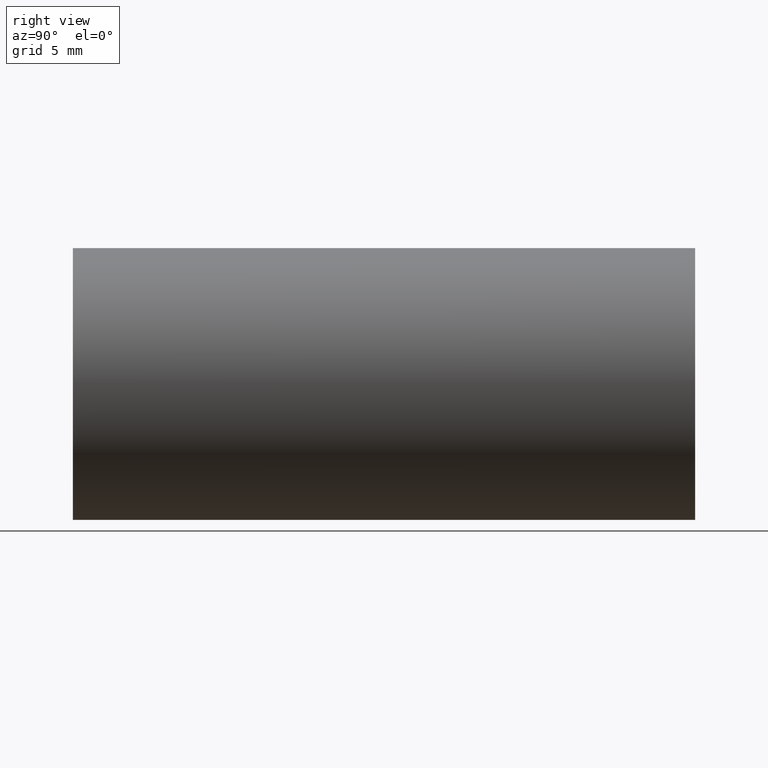
[diagram: clean part render]
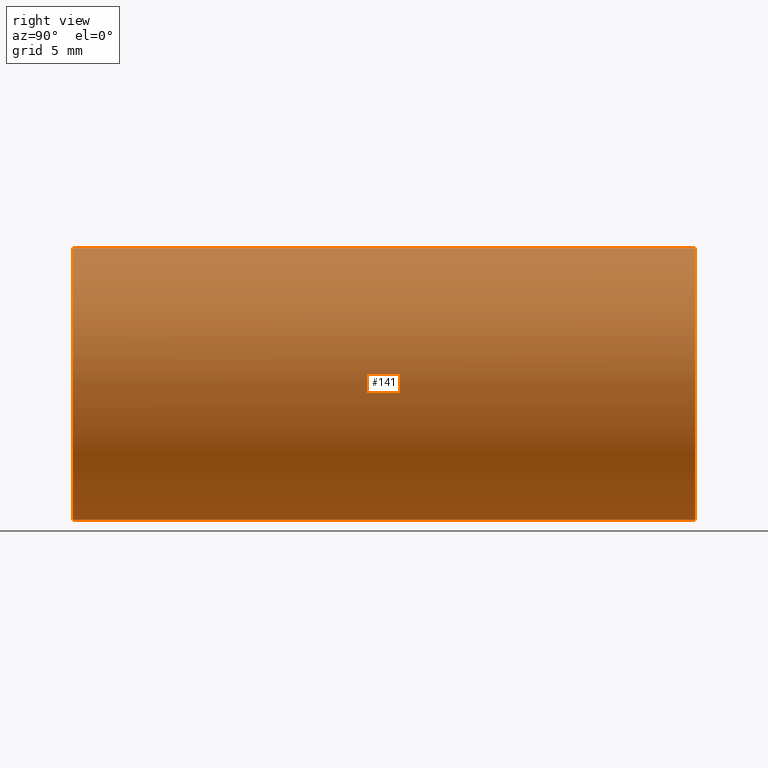
[diagram: same view with one face highlighted and labeled with its STEP entity id]
A machine part, right view. The second image highlights one B-rep face of the part: STEP entity #141.
In plain terms, the highlighted cylindrical surface (partial cylindrical patch) has radius 9.525 mm, axis along (-0, 1, -0).
Its self-contained STEP definition (entity closure, byte-faithful):
#1 = VECTOR ( 'NONE', #55, 1000.000000000000000 ) ;
#15 = CARTESIAN_POINT ( 'NONE',  ( 0.0000000000000000000, 161.3761669434274500, 0.0000000000000000000 ) ) ;
#23 = DIRECTION ( 'NONE',  ( 0.0000000000000000000, 0.0000000000000000000, 1.000000000000000000 ) ) ;
#28 = AXIS2_PLACEMENT_3D ( 'NONE', #15, #343, #548 ) ;
#30 = LINE ( 'NONE', #64, #1 ) ;
#43 = VERTEX_POINT ( 'NONE', #101 ) ;
#55 = DIRECTION ( 'NONE',  ( -0.0000000000000000000, 1.000000000000000000, -0.0000000000000000000 ) ) ;
#64 = CARTESIAN_POINT ( 'NONE',  ( 1.166476076187856400E-015, 161.3761669434274500, -9.525000000000019900 ) ) ;
#66 = ORIENTED_EDGE ( 'NONE', *, *, #236, .T. ) ;
#101 = CARTESIAN_POINT ( 'NONE',  ( 1.166476076187856400E-015, -2.775557561562891400E-014, -9.525000000000019900 ) ) ;
#118 = CARTESIAN_POINT ( 'NONE',  ( 0.0000000000000000000, 43.59999999999998700, 9.525000000000019900 ) ) ;
#135 = EDGE_LOOP ( 'NONE', ( #267, #66, #561, #223 ) ) ;
#141 = ADVANCED_FACE ( 'NONE', ( #339 ), #496, .T. ) ;
#160 = CARTESIAN_POINT ( 'NONE',  ( 0.0000000000000000000, 161.3761669434274500, 9.525000000000019900 ) ) ;
#174 = EDGE_CURVE ( 'NONE', #399, #320, #382, .T. ) ;
#197 = AXIS2_PLACEMENT_3D ( 'NONE', #355, #555, #23 ) ;
#223 = ORIENTED_EDGE ( 'NONE', *, *, #174, .F. ) ;
#236 = EDGE_CURVE ( 'NONE', #43, #594, #30, .T. ) ;
#257 = CIRCLE ( 'NONE', #197, 9.525000000000019900 ) ;
#265 = DIRECTION ( 'NONE',  ( 0.0000000000000000000, 0.0000000000000000000, 1.000000000000000000 ) ) ;
#267 = ORIENTED_EDGE ( 'NONE', *, *, #459, .T. ) ;
#320 = VERTEX_POINT ( 'NONE', #118 ) ;
#339 = FACE_OUTER_BOUND ( 'NONE', #135, .T. ) ;
#342 = EDGE_CURVE ( 'NONE', #320, #594, #257, .T. ) ;
#343 = DIRECTION ( 'NONE',  ( -0.0000000000000000000, 1.000000000000000000, -0.0000000000000000000 ) ) ;
#355 = CARTESIAN_POINT ( 'NONE',  ( 0.0000000000000000000, 43.59999999999998700, 0.0000000000000000000 ) ) ;
#382 = LINE ( 'NONE', #160, #411 ) ;
#399 = VERTEX_POINT ( 'NONE', #456 ) ;
#411 = VECTOR ( 'NONE', #588, 1000.000000000000000 ) ;
#412 = CARTESIAN_POINT ( 'NONE',  ( 0.0000000000000000000, -2.775557561562891400E-014, 0.0000000000000000000 ) ) ;
#456 = CARTESIAN_POINT ( 'NONE',  ( 0.0000000000000000000, -2.775557561562891400E-014, 9.525000000000019900 ) ) ;
#459 = EDGE_CURVE ( 'NONE', #399, #43, #596, .T. ) ;
#473 = CARTESIAN_POINT ( 'NONE',  ( 1.166476076187856400E-015, 43.59999999999998700, -9.525000000000019900 ) ) ;
#496 = CYLINDRICAL_SURFACE ( 'NONE', #28, 9.525000000000019900 ) ;
#548 = DIRECTION ( 'NONE',  ( 0.0000000000000000000, 0.0000000000000000000, 1.000000000000000000 ) ) ;
#555 = DIRECTION ( 'NONE',  ( -0.0000000000000000000, 1.000000000000000000, -0.0000000000000000000 ) ) ;
#561 = ORIENTED_EDGE ( 'NONE', *, *, #342, .F. ) ;
#588 = DIRECTION ( 'NONE',  ( -0.0000000000000000000, 1.000000000000000000, -0.0000000000000000000 ) ) ;
#592 = AXIS2_PLACEMENT_3D ( 'NONE', #412, #606, #265 ) ;
#594 = VERTEX_POINT ( 'NONE', #473 ) ;
#596 = CIRCLE ( 'NONE', #592, 9.525000000000019900 ) ;
#606 = DIRECTION ( 'NONE',  ( -0.0000000000000000000, 1.000000000000000000, -0.0000000000000000000 ) ) ;